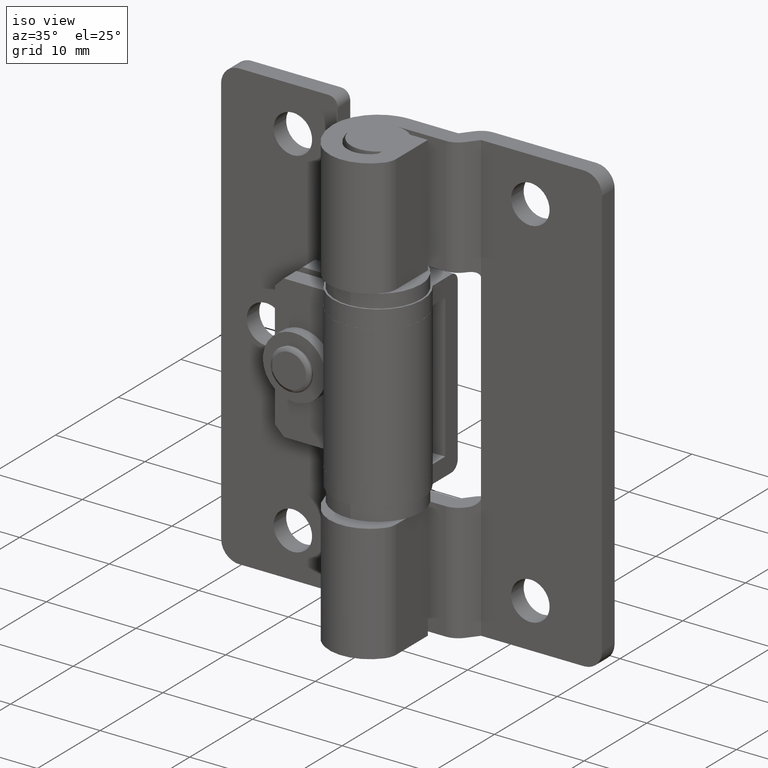
[diagram: clean part render]
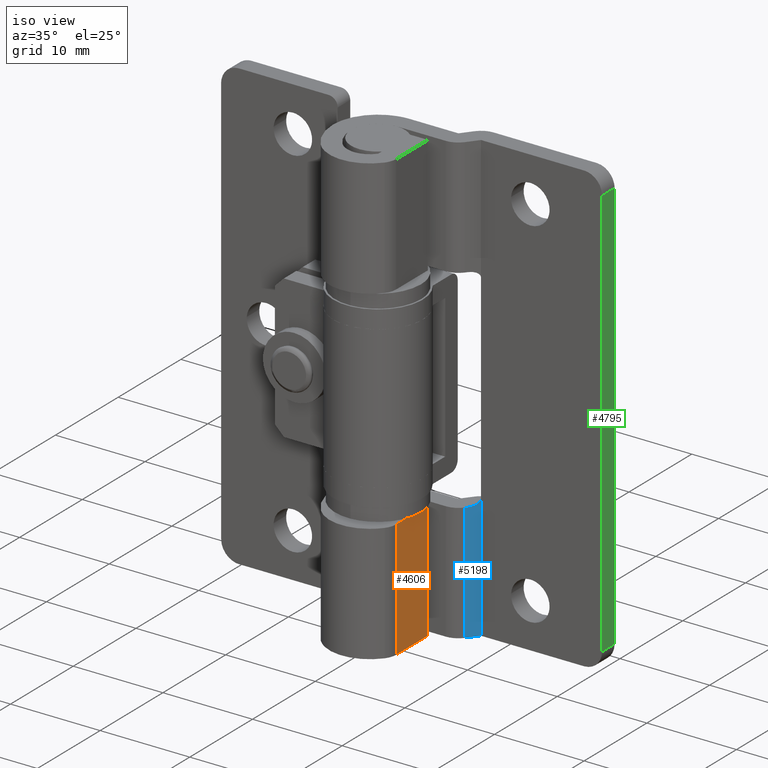
[diagram: same view with three faces highlighted in distinct colors, each labeled with its STEP entity id]
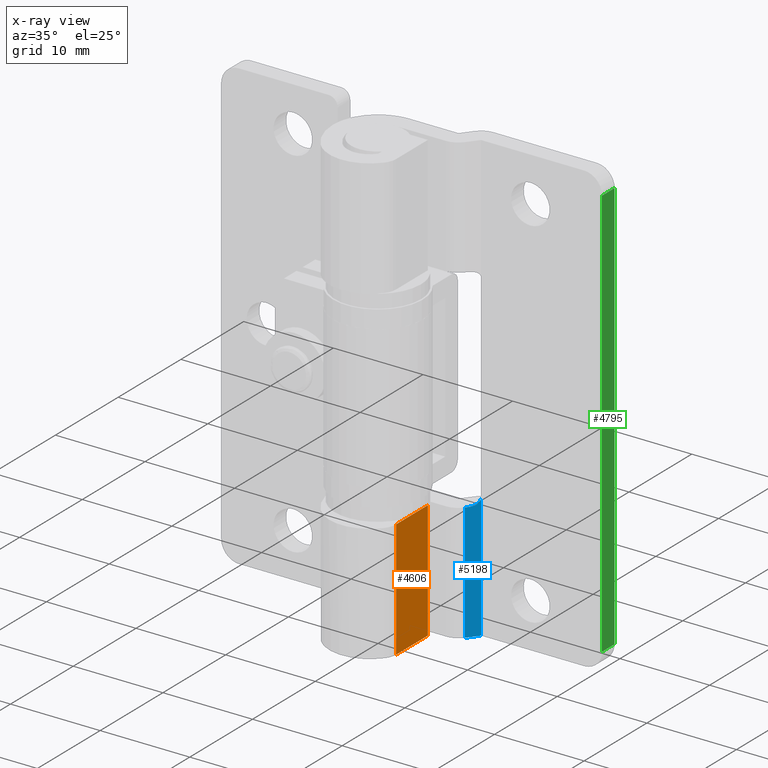
[diagram: x-ray of the same camera — body ghosted, the three highlighted faces saturated]
A machine part, iso view with three faces highlighted in distinct colors.
The next image is the same camera in x-ray (body ghosted, the three faces saturated) — at least one of them is partly hidden behind the body in this view.
Their STEP definitions:

[orange] entity #4606 — the highlighted face is a freeform B-spline surface patch.
#3690=CARTESIAN_POINT('',(4.000000000000100,-2.817617000000000,13.150000000000000));
#3691=VERTEX_POINT('',#3690);
#3705=CARTESIAN_POINT('',(4.000000000000100,2.236068000000000,13.150000000000000));
#3706=VERTEX_POINT('',#3705);
#3707=CARTESIAN_POINT('',(4.000000000000100,-2.817617000000000,13.150000000000000));
#3708=CARTESIAN_POINT('',(4.000000000000100,2.236068000000000,13.150000000000000));
#3709=QUASI_UNIFORM_CURVE('',1,(#3707,#3708),.UNSPECIFIED.,.F.,.U.);
#3710=EDGE_CURVE('',#3691,#3706,#3709,.T.);
#4272=CARTESIAN_POINT('',(4.000000000000100,2.236068000000000,0.0));
#4273=VERTEX_POINT('',#4272);
#4279=CARTESIAN_POINT('',(4.000000000000100,-2.817617000000000,0.0));
#4280=VERTEX_POINT('',#4279);
#4281=CARTESIAN_POINT('',(4.000000000000100,2.236068000000000,0.0));
#4282=CARTESIAN_POINT('',(4.000000000000100,-2.817617000000000,0.0));
#4283=QUASI_UNIFORM_CURVE('',1,(#4281,#4282),.UNSPECIFIED.,.F.,.U.);
#4284=EDGE_CURVE('',#4273,#4280,#4283,.T.);
#4587=CARTESIAN_POINT('',(4.000000000000100,-3.070048508514600,13.806842104184380));
#4588=CARTESIAN_POINT('',(4.000000000000100,-3.070048508514600,-0.656842809605345));
#4589=CARTESIAN_POINT('',(4.000000000000100,2.488499689248458,13.806842104184380));
#4590=CARTESIAN_POINT('',(4.000000000000100,2.488499689248458,-0.656842809605345));
#4591=B_SPLINE_SURFACE_WITH_KNOTS('',1,1,((#4587,#4589),(#4588,#4590)),.UNSPECIFIED.,.F.,.F.,.U.,(2,2),(2,2),(0.0,14.463684913789720),(0.0,5.558548197763058),.UNSPECIFIED.);
#4592=ORIENTED_EDGE('',*,*,#3710,.F.);
#4593=CARTESIAN_POINT('',(4.000000000000100,-2.817617000000000,13.150000000000000));
#4594=CARTESIAN_POINT('',(4.000000000000100,-2.817617000000000,0.0));
#4595=QUASI_UNIFORM_CURVE('',1,(#4593,#4594),.UNSPECIFIED.,.F.,.U.);
#4596=EDGE_CURVE('',#3691,#4280,#4595,.T.);
#4597=ORIENTED_EDGE('',*,*,#4596,.T.);
#4598=ORIENTED_EDGE('',*,*,#4284,.F.);
#4599=CARTESIAN_POINT('',(4.000000000000100,2.236068000000000,13.150000000000000));
#4600=CARTESIAN_POINT('',(4.000000000000100,2.236068000000000,0.0));
#4601=QUASI_UNIFORM_CURVE('',1,(#4599,#4600),.UNSPECIFIED.,.F.,.U.);
#4602=EDGE_CURVE('',#3706,#4273,#4601,.T.);
#4603=ORIENTED_EDGE('',*,*,#4602,.F.);
#4604=EDGE_LOOP('',(#4592,#4597,#4598,#4603));
#4605=FACE_OUTER_BOUND('',#4604,.T.);
#4606=ADVANCED_FACE('',(#4605),#4591,.T.);

[blue] entity #5198 — the highlighted face is a freeform B-spline surface patch.
#3780=CARTESIAN_POINT('',(7.053584411082980,3.776382455501895,13.150000000000000));
#3781=VERTEX_POINT('',#3780);
#3795=CARTESIAN_POINT('',(7.249999999999850,4.030326548078236,13.150000000000000));
#3796=VERTEX_POINT('',#3795);
#3797=CARTESIAN_POINT('',(7.053584411082980,3.776382455501895,13.150000000000000));
#3798=CARTESIAN_POINT('',(7.249999999999850,4.030326548078236,13.150000000000000));
#3799=QUASI_UNIFORM_CURVE('',1,(#3797,#3798),.UNSPECIFIED.,.F.,.U.);
#3800=EDGE_CURVE('',#3781,#3796,#3799,.T.);
#3825=CARTESIAN_POINT('',(8.000000000000199,5.0,13.900000000000000));
#3826=VERTEX_POINT('',#3825);
#3827=CARTESIAN_POINT('',(8.000000000000199,5.0,13.900000000000000));
#3828=CARTESIAN_POINT('',(8.000000000000002,4.999999999999781,13.589339816417997));
#3829=CARTESIAN_POINT('',(7.780330071643415,4.715989203049388,13.369669899863590));
#3830=CARTESIAN_POINT('',(7.560660143286829,4.431978406098996,13.149999983309192));
#3831=CARTESIAN_POINT('',(7.249999999999850,4.030326548078236,13.150000000000000));
#3839=(BOUNDED_CURVE()B_SPLINE_CURVE(2,(#3827,#3828,#3829,#3830,#3831),.UNSPECIFIED.,.F.,.U.)B_SPLINE_CURVE_WITH_KNOTS((3,2,3),(0.0,0.500000000000000,1.0),.UNSPECIFIED.)CURVE()GEOMETRIC_REPRESENTATION_ITEM()RATIONAL_B_SPLINE_CURVE((1.0,0.923879527371189,1.0,0.923879527371189,1.0))REPRESENTATION_ITEM(''));
#3840=EDGE_CURVE('',#3826,#3796,#3839,.T.);
#4182=CARTESIAN_POINT('',(8.000000000000101,5.0,0.0));
#4183=VERTEX_POINT('',#4182);
#4189=CARTESIAN_POINT('',(7.053585000000000,3.776382000000000,0.0));
#4190=VERTEX_POINT('',#4189);
#4191=CARTESIAN_POINT('',(8.000000000000101,5.0,0.0));
#4192=CARTESIAN_POINT('',(7.053585000000000,3.776382000000000,0.0));
#4193=QUASI_UNIFORM_CURVE('',1,(#4191,#4192),.UNSPECIFIED.,.F.,.U.);
#4194=EDGE_CURVE('',#4183,#4190,#4193,.T.);
#4747=CARTESIAN_POINT('',(7.053584411082980,3.776382455501895,13.150000000000000));
#4748=CARTESIAN_POINT('',(7.053585000000000,3.776382000000000,0.0));
#4749=QUASI_UNIFORM_CURVE('',1,(#4747,#4748),.UNSPECIFIED.,.F.,.U.);
#4750=EDGE_CURVE('',#3781,#4190,#4749,.T.);
#4970=CARTESIAN_POINT('',(8.000000000000199,5.0,13.900000000000000));
#4971=CARTESIAN_POINT('',(8.000000000000101,5.0,0.0));
#4972=QUASI_UNIFORM_CURVE('',1,(#4970,#4971),.UNSPECIFIED.,.F.,.U.);
#4973=EDGE_CURVE('',#3826,#4183,#4972,.T.);
#5186=CARTESIAN_POINT('',(7.006311572584343,3.715262283271596,-0.694304923398539));
#5187=CARTESIAN_POINT('',(8.047273452800635,5.061119749548434,-0.694304923398539));
#5188=CARTESIAN_POINT('',(7.006311572584343,3.715262283271596,14.594304302020120));
#5189=CARTESIAN_POINT('',(8.047273452800635,5.061119749548434,14.594304302020120));
#5190=B_SPLINE_SURFACE_WITH_KNOTS('',1,1,((#5186,#5188),(#5187,#5189)),.UNSPECIFIED.,.F.,.F.,.U.,(2,2),(2,2),(0.041708334948495,0.958291687403247),(0.0,15.288609225418650),.UNSPECIFIED.);
#5191=ORIENTED_EDGE('',*,*,#4973,.F.);
#5192=ORIENTED_EDGE('',*,*,#3840,.T.);
#5193=ORIENTED_EDGE('',*,*,#3800,.F.);
#5194=ORIENTED_EDGE('',*,*,#4750,.T.);
#5195=ORIENTED_EDGE('',*,*,#4194,.F.);
#5196=EDGE_LOOP('',(#5191,#5192,#5193,#5194,#5195));
#5197=FACE_OUTER_BOUND('',#5196,.T.);
#5198=ADVANCED_FACE('',(#5197),#5190,.T.);

[green] entity #4795 — the highlighted face is a freeform B-spline surface patch.
#3501=CARTESIAN_POINT('',(21.500000000000000,7.0,48.0));
#3502=VERTEX_POINT('',#3501);
#3523=CARTESIAN_POINT('',(21.500000000000000,5.0,48.0));
#3524=VERTEX_POINT('',#3523);
#3538=CARTESIAN_POINT('',(21.500000000000000,7.0,48.0));
#3539=CARTESIAN_POINT('',(21.500000000000000,5.0,48.0));
#3540=QUASI_UNIFORM_CURVE('',1,(#3538,#3539),.UNSPECIFIED.,.F.,.U.);
#3541=EDGE_CURVE('',#3502,#3524,#3540,.T.);
#3560=CARTESIAN_POINT('',(21.500000000000000,7.0,2.0));
#3561=VERTEX_POINT('',#3560);
#3577=CARTESIAN_POINT('',(21.500000000000000,5.0,2.0));
#3578=VERTEX_POINT('',#3577);
#3579=CARTESIAN_POINT('',(21.500000000000000,5.0,2.0));
#3580=CARTESIAN_POINT('',(21.500000000000000,7.0,2.0));
#3581=QUASI_UNIFORM_CURVE('',1,(#3579,#3580),.UNSPECIFIED.,.F.,.U.);
#3582=EDGE_CURVE('',#3578,#3561,#3581,.T.);
#4776=CARTESIAN_POINT('',(21.500000000000000,4.900100003876388,50.297699910843093));
#4777=CARTESIAN_POINT('',(21.500000000000000,4.900100003876388,-0.297701144659218));
#4778=CARTESIAN_POINT('',(21.500000000000000,7.099900049767793,50.297699910843093));
#4779=CARTESIAN_POINT('',(21.500000000000000,7.099900049767793,-0.297701144659218));
#4780=B_SPLINE_SURFACE_WITH_KNOTS('',1,1,((#4776,#4778),(#4777,#4779)),.UNSPECIFIED.,.F.,.F.,.U.,(2,2),(2,2),(0.0,50.595401055502307),(0.0,2.199800045891405),.UNSPECIFIED.);
#4781=CARTESIAN_POINT('',(21.500000000000000,5.0,48.0));
#4782=CARTESIAN_POINT('',(21.500000000000000,5.0,2.0));
#4783=QUASI_UNIFORM_CURVE('',1,(#4781,#4782),.UNSPECIFIED.,.F.,.U.);
#4784=EDGE_CURVE('',#3524,#3578,#4783,.T.);
#4785=ORIENTED_EDGE('',*,*,#4784,.T.);
#4786=ORIENTED_EDGE('',*,*,#3582,.T.);
#4787=CARTESIAN_POINT('',(21.500000000000000,7.0,48.0));
#4788=CARTESIAN_POINT('',(21.500000000000000,7.0,2.0));
#4789=QUASI_UNIFORM_CURVE('',1,(#4787,#4788),.UNSPECIFIED.,.F.,.U.);
#4790=EDGE_CURVE('',#3502,#3561,#4789,.T.);
#4791=ORIENTED_EDGE('',*,*,#4790,.F.);
#4792=ORIENTED_EDGE('',*,*,#3541,.T.);
#4793=EDGE_LOOP('',(#4785,#4786,#4791,#4792));
#4794=FACE_OUTER_BOUND('',#4793,.T.);
#4795=ADVANCED_FACE('',(#4794),#4780,.T.);